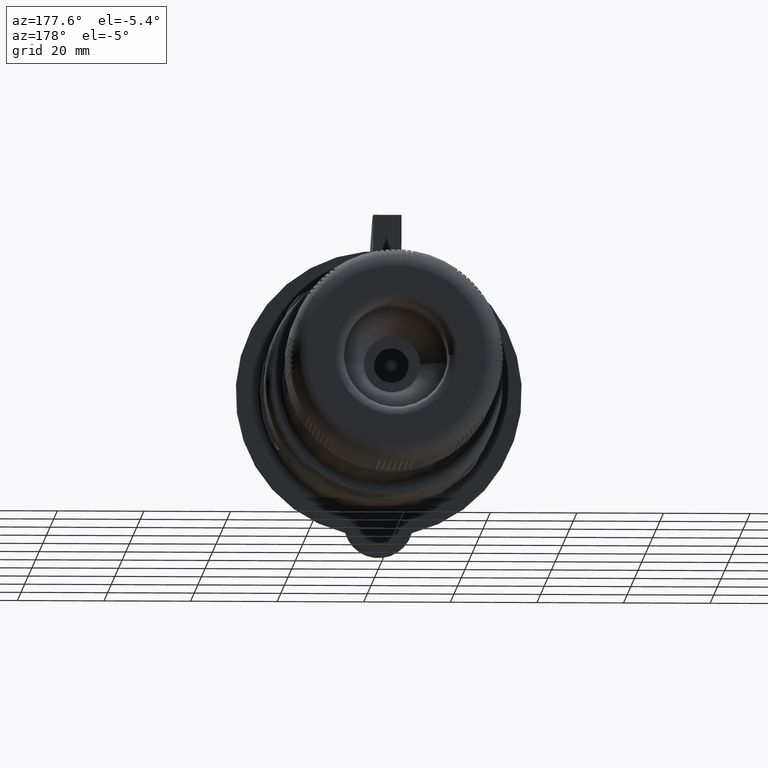
[diagram: clean part render]
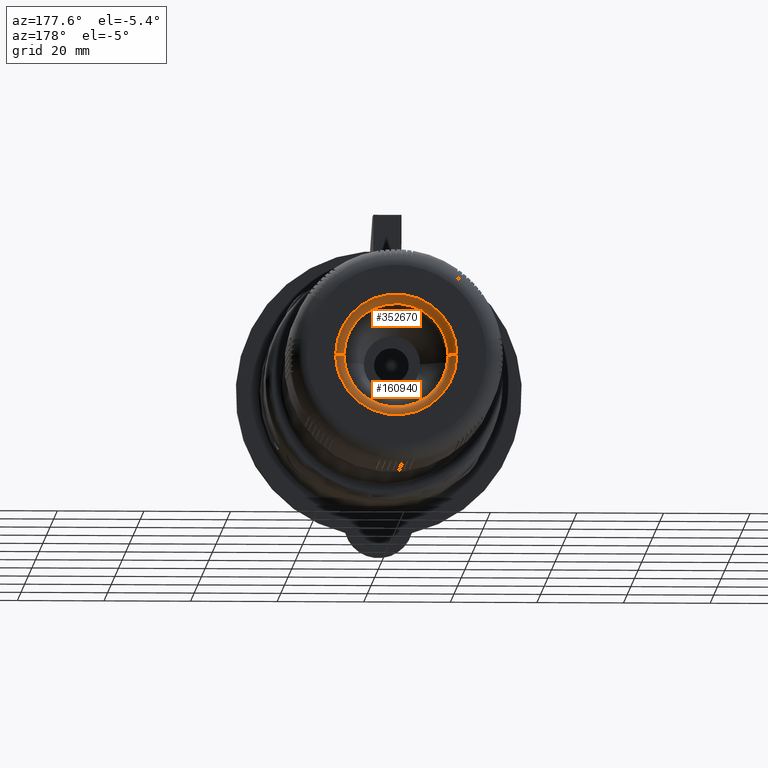
[diagram: same view with one multi-face feature highlighted, each face labeled with its STEP entity id]
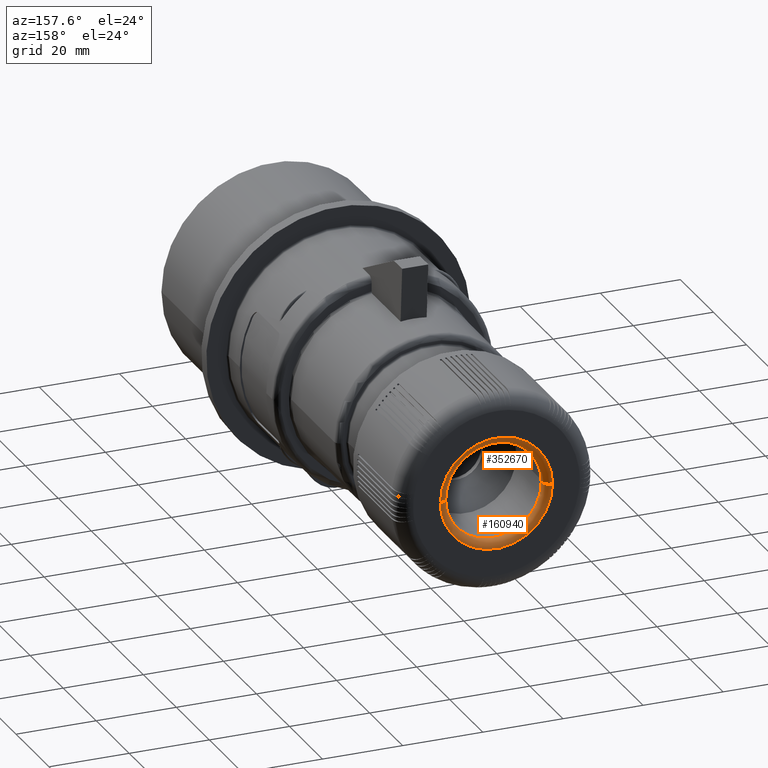
[diagram: same view with one multi-face feature highlighted, each face labeled with its STEP entity id]
A machine part, auxiliary view. The highlighted faces form ONE feature: a constant-radius fillet chain: 2 tangent blend faces with common blend radius 2 mm. The faces share edges in the B-rep.
A second angle (auxiliary view) of the same feature is appended — it is thin or edge-on in the first view.
Their STEP definitions:
[1] entity #160940 (Torus):
#158750=CARTESIAN_POINT('',(-199.999999999999,19.772253609118,
1.17365944957215E-12));
#158760=DIRECTION('',(-3.37423673639642E-15,-1.,-2.94209101525666E-15));
#158770=DIRECTION('',(1.,-3.37423673639642E-15,4.96365579275044E-30));
#158780=AXIS2_PLACEMENT_3D('',#158750,#158760,#158770);
#158790=CIRCLE('',#158780,13.9999999999998);
#158800=CARTESIAN_POINT('',(-185.999999999999,19.772253609118,
1.17365944957214E-12));
#158810=VERTEX_POINT('',#158800);
#158820=CARTESIAN_POINT('',(-213.999999999999,19.772253609118,
1.17365944957214E-12));
#158830=VERTEX_POINT('',#158820);
#158860=CARTESIAN_POINT('',(-187.065686544842,19.772253609118,
-5.35756805311015));
#158870=VERTEX_POINT('',#158860);
#158880=EDGE_CURVE('',#158870,#158810,#158790,.T.);
#158900=EDGE_CURVE('',#158830,#158870,#158790,.T.);
#160560=CARTESIAN_POINT('',(-199.999999999999,17.772253609118,
1.16777526754163E-12));
#160570=DIRECTION('',(3.37423673639642E-15,1.,2.94209101525666E-15));
#160580=DIRECTION('',(1.,-3.37825006064517E-15,-9.01555320252597E-31));
#160590=AXIS2_PLACEMENT_3D('',#160560,#160570,#160580);
#160600=TOROIDAL_SURFACE('',#160590,13.9999999999998,2.);
#160610=ORIENTED_EDGE('',*,*,#158880,.F.);
#160620=CARTESIAN_POINT('',(-185.999999999999,17.772253609118,
1.16777526754163E-12));
#160630=DIRECTION('',(9.92731158550086E-30,2.94209101525666E-15,-1.));
#160640=DIRECTION('',(0.,-1.,-2.94209101525666E-15));
#160650=AXIS2_PLACEMENT_3D('',#160620,#160630,#160640);
#160660=CIRCLE('',#160650,2.);
#160670=CARTESIAN_POINT('',(-187.999999999999,17.772253609118,
1.16777526754163E-12));
#160680=VERTEX_POINT('',#160670);
#160690=EDGE_CURVE('',#160680,#158810,#160660,.T.);
#160700=ORIENTED_EDGE('',*,*,#160690,.T.);
#160710=CARTESIAN_POINT('',(-199.999999999999,17.772253609118,
1.16777526754163E-12));
#160720=DIRECTION('',(-3.37423673639642E-15,-1.,-2.94209101525666E-15));
#160730=DIRECTION('',(1.,-3.37423673639642E-15,4.96365579275044E-30));
#160740=AXIS2_PLACEMENT_3D('',#160710,#160720,#160730);
#160750=CIRCLE('',#160740,11.9999999999998);
#160760=CARTESIAN_POINT('',(-191.514718625761,17.772253609118,
-8.48528137423727));
#160770=VERTEX_POINT('',#160760);
#160780=EDGE_CURVE('',#160770,#160680,#160750,.T.);
#160790=ORIENTED_EDGE('',*,*,#160780,.T.);
#160800=CARTESIAN_POINT('',(-211.999999999999,17.772253609118,
1.16777526754163E-12));
#160810=VERTEX_POINT('',#160800);
#160820=EDGE_CURVE('',#160810,#160770,#160750,.T.);
#160830=ORIENTED_EDGE('',*,*,#160820,.T.);
#160840=CARTESIAN_POINT('',(-213.999999999999,17.772253609118,
1.16777526754163E-12));
#160850=DIRECTION('',(-9.92731158550086E-30,-2.94209101525666E-15,1.));
#160860=DIRECTION('',(-6.74847347279284E-15,-1.,-2.94209101525666E-15));
#160870=AXIS2_PLACEMENT_3D('',#160840,#160850,#160860);
#160880=CIRCLE('',#160870,2.);
#160890=EDGE_CURVE('',#160810,#158830,#160880,.T.);
#160900=ORIENTED_EDGE('',*,*,#160890,.F.);
#160910=ORIENTED_EDGE('',*,*,#158900,.F.);
#160920=EDGE_LOOP('',(#160910,#160900,#160830,#160790,#160700,#160610));
#160930=FACE_OUTER_BOUND('',#160920,.T.);
#160940=ADVANCED_FACE('',(#160930),#160600,.T.);
[2] entity #352670 (Torus):
#158750=CARTESIAN_POINT('',(-199.999999999999,19.772253609118,
1.17365944957215E-12));
#158760=DIRECTION('',(-3.37423673639642E-15,-1.,-2.94209101525666E-15));
#158770=DIRECTION('',(1.,-3.37423673639642E-15,4.96365579275044E-30));
#158780=AXIS2_PLACEMENT_3D('',#158750,#158760,#158770);
#158790=CIRCLE('',#158780,13.9999999999998);
#158800=CARTESIAN_POINT('',(-185.999999999999,19.772253609118,
1.17365944957214E-12));
#158810=VERTEX_POINT('',#158800);
#158820=CARTESIAN_POINT('',(-213.999999999999,19.772253609118,
1.17365944957214E-12));
#158830=VERTEX_POINT('',#158820);
#158840=EDGE_CURVE('',#158810,#158830,#158790,.T.);
#160620=CARTESIAN_POINT('',(-185.999999999999,17.772253609118,
1.16777526754163E-12));
#160630=DIRECTION('',(9.92731158550086E-30,2.94209101525666E-15,-1.));
#160640=DIRECTION('',(0.,-1.,-2.94209101525666E-15));
#160650=AXIS2_PLACEMENT_3D('',#160620,#160630,#160640);
#160660=CIRCLE('',#160650,2.);
#160670=CARTESIAN_POINT('',(-187.999999999999,17.772253609118,
1.16777526754163E-12));
#160680=VERTEX_POINT('',#160670);
#160690=EDGE_CURVE('',#160680,#158810,#160660,.T.);
#160710=CARTESIAN_POINT('',(-199.999999999999,17.772253609118,
1.16777526754163E-12));
#160720=DIRECTION('',(-3.37423673639642E-15,-1.,-2.94209101525666E-15));
#160730=DIRECTION('',(1.,-3.37423673639642E-15,4.96365579275044E-30));
#160740=AXIS2_PLACEMENT_3D('',#160710,#160720,#160730);
#160750=CIRCLE('',#160740,11.9999999999998);
#160800=CARTESIAN_POINT('',(-211.999999999999,17.772253609118,
1.16777526754163E-12));
#160810=VERTEX_POINT('',#160800);
#160840=CARTESIAN_POINT('',(-213.999999999999,17.772253609118,
1.16777526754163E-12));
#160850=DIRECTION('',(-9.92731158550086E-30,-2.94209101525666E-15,1.));
#160860=DIRECTION('',(-6.74847347279284E-15,-1.,-2.94209101525666E-15));
#160870=AXIS2_PLACEMENT_3D('',#160840,#160850,#160860);
#160880=CIRCLE('',#160870,2.);
#160890=EDGE_CURVE('',#160810,#158830,#160880,.T.);
#161250=CARTESIAN_POINT('',(-208.485281374237,17.772253609118,
8.48528137423961));
#161260=VERTEX_POINT('',#161250);
#161270=EDGE_CURVE('',#160680,#161260,#160750,.T.);
#342990=EDGE_CURVE('',#161260,#160810,#160750,.T.);
#352550=CARTESIAN_POINT('',(-199.999999999999,17.772253609118,
1.16777526754163E-12));
#352560=DIRECTION('',(3.37423673639642E-15,1.,2.94209101525666E-15));
#352570=DIRECTION('',(1.,-3.37825006064517E-15,-9.01555320252597E-31));
#352580=AXIS2_PLACEMENT_3D('',#352550,#352560,#352570);
#352590=TOROIDAL_SURFACE('',#352580,13.9999999999998,2.);
#352600=ORIENTED_EDGE('',*,*,#160690,.F.);
#352610=ORIENTED_EDGE('',*,*,#158840,.F.);
#352620=ORIENTED_EDGE('',*,*,#160890,.T.);
#352630=ORIENTED_EDGE('',*,*,#342990,.T.);
#352640=ORIENTED_EDGE('',*,*,#161270,.T.);
#352650=EDGE_LOOP('',(#352640,#352630,#352620,#352610,#352600));
#352660=FACE_OUTER_BOUND('',#352650,.T.);
#352670=ADVANCED_FACE('',(#352660),#352590,.T.);